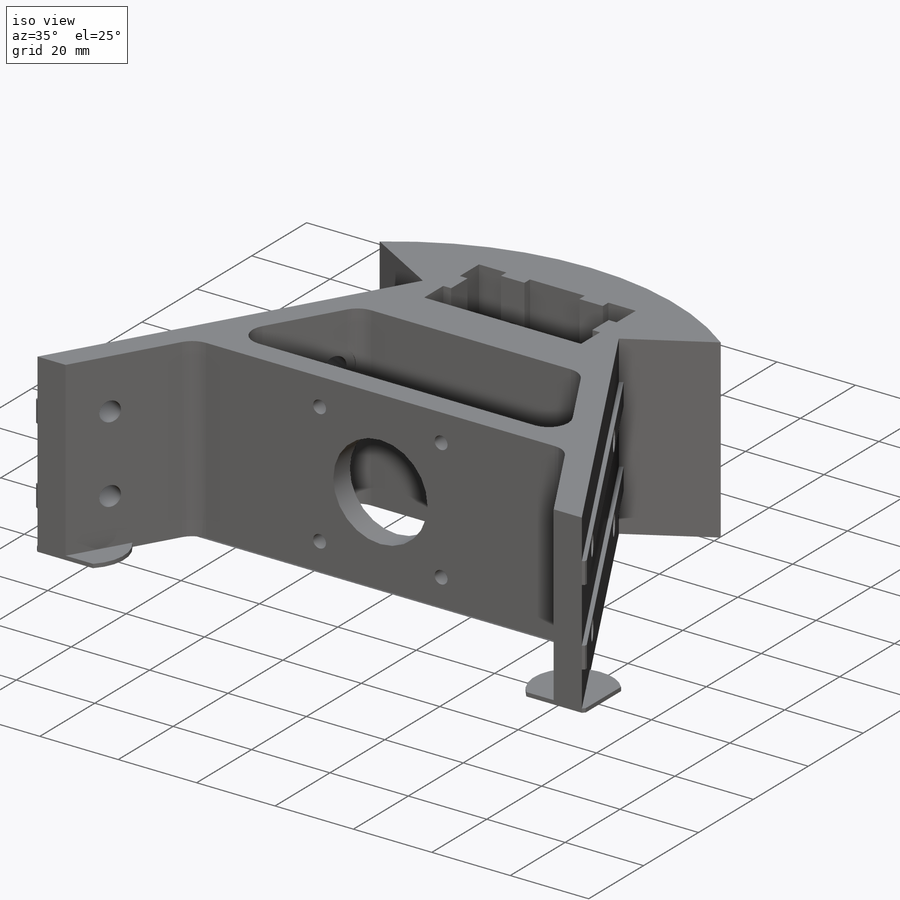
[diagram: iso view]
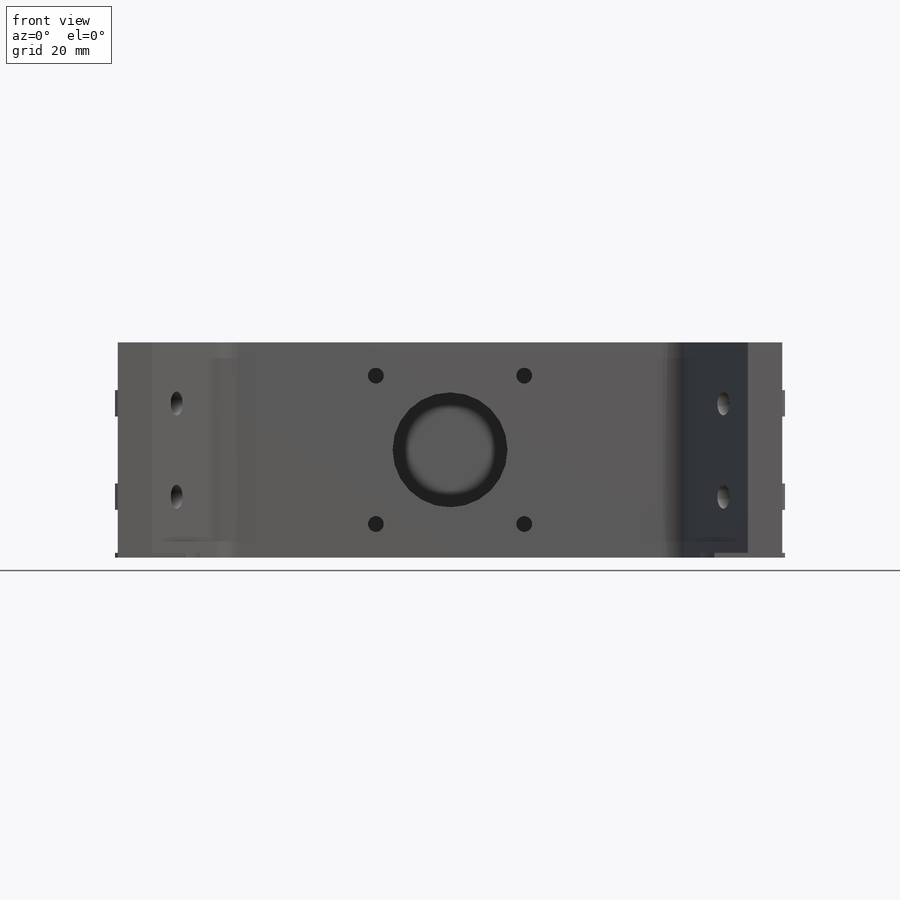
[diagram: front view]
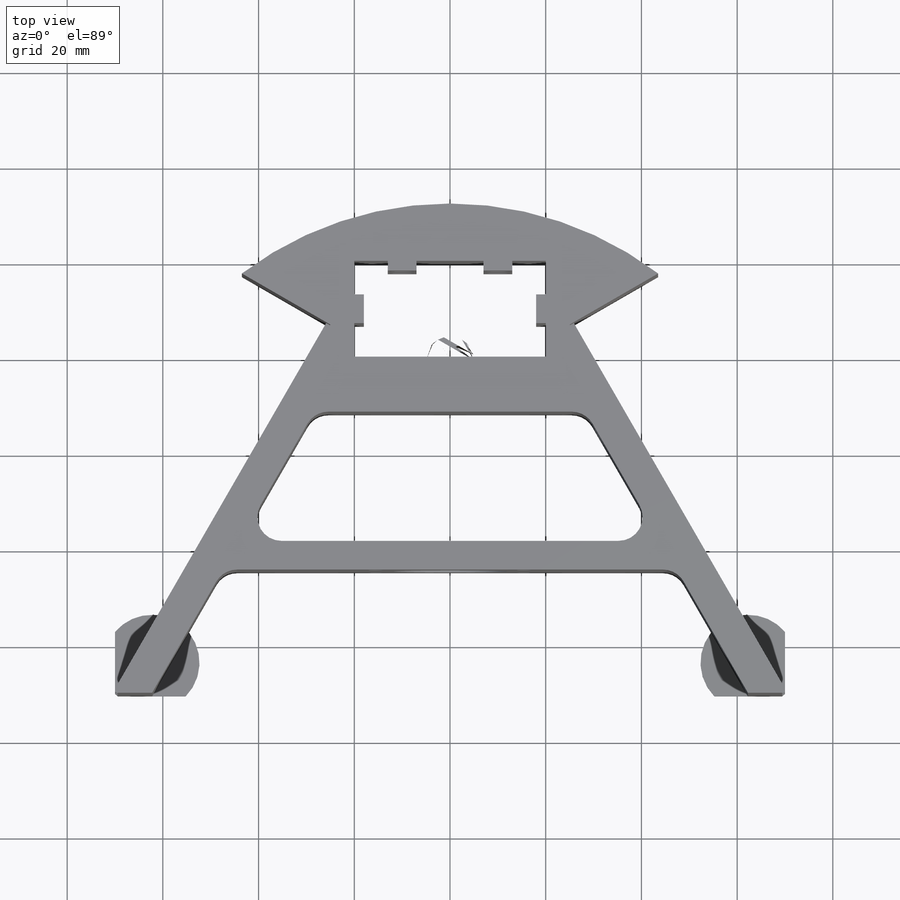
[diagram: top view]
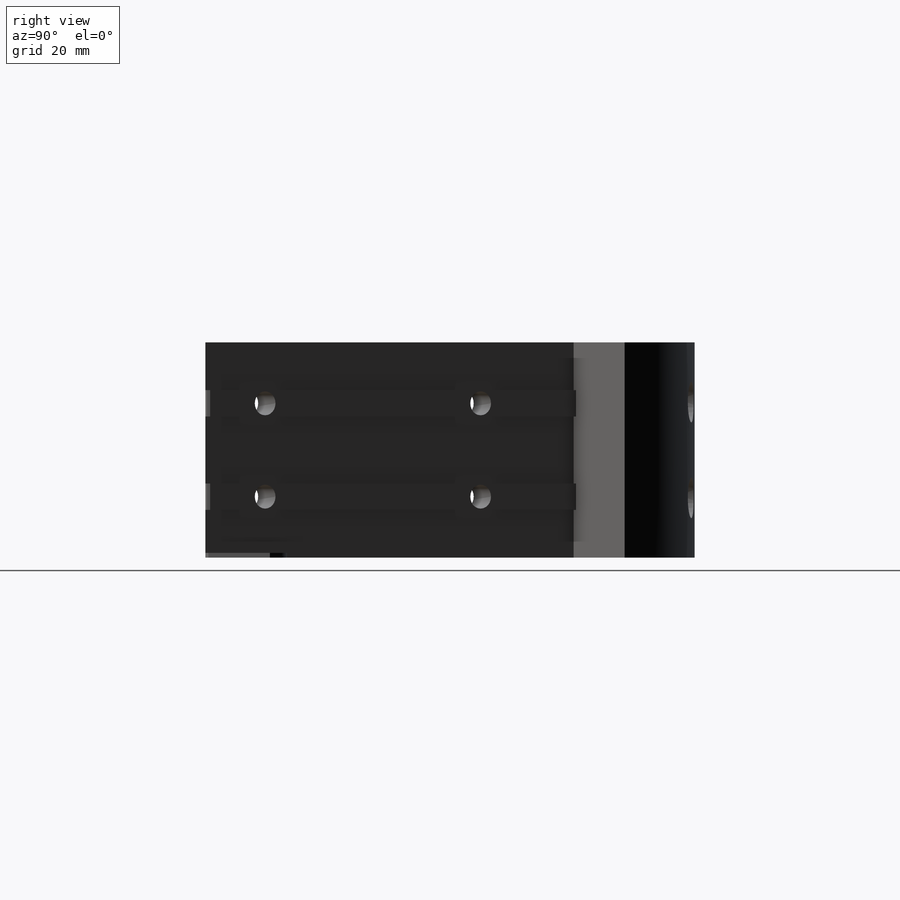
[diagram: right view]
SOLIDWORKS PART (.sldprt)
format: sldprt  version: not decoded by parser v0  size: 586,752 bytes
history: native  units: mm
features: sketch x11, cut_extrude x6, extrude x5, pattern_linear x2, material x1, mirror x1 (+13 scaffold rows collapsed)
feature tree (39):
  scaffold x13  (default folders/planes/origin — collapsed)
  material  "ABS"
  sketch  "Sketch1"  dims[c1.D1=144.0mm c1.D14=10.0mm c1.D2=40.0mm c1.D3=6.0mm c1.D4=2.0mm c1.D5=40.0mm c1.D6=20.0mm c1.D7=5.0mm c2.D2=40.0mm c2.D7=50.0mm c2.D8=50.0mm c3.D8=30.0deg c3.D9=200.0mm c4.D8=50.0mm c5.D8=30.0deg c5.D9=40.0mm c5.D10=200.0mm c5.D11=150.0mm c5.D12=~13.599582mm c6.D12=30.0deg c6.D13=11.5mm c6.D15=17.0mm c6.D16=45.0mm c6.D17=70.5mm c7.D13=1.5mm c7.D18=~12.529593mm c8.D13=1.5mm c8.D16=4.0mm c8.D18=6.0mm c9.D16=~68.844253mm]
  extrude  "Boss-Extrude1"  Depth=45mm
  sketch  "Sketch2"  dims[c1.D1=24.0mm c1.D2=3.3mm c1.D3=3.3mm c1.D4=3.3mm c2.D3=31.0mm c2.D4=31.0mm]
  cut_extrude  "Cut-Extrude1"  [1 undecoded]
  sketch  "Sketch3"  dims[D1=5.5mm D2=7.0mm]
  extrude  "Boss-Extrude2"  Depth=1mm
  sketch  "Sketch4"  dims[c1.D1=5.0mm c1.D3=5.0mm c1.D2=23.0mm c2.D3=75.0mm]
  cut_extrude  "Cut-Extrude2"  [1 undecoded]
  sketch  "Sketch7"  dims[D1=9.0mm]
  cut_extrude  "Cut-Extrude6"  [1 undecoded]
  sketch  "Sketch5"  dims[c1.D1=~5.153715mm c1.D2=5.0mm c2.D1=5.5mm c2.D2=7.0mm c3.D1=20.0mm]
  cut_extrude  "Cut-Extrude3"  [1 undecoded]
  sketch  "Sketch6"  dims[D1=8.5mm]
  cut_extrude  "Cut-Extrude5"  Depth=1.7mm
  mirror  "Mirror1"
  sketch  "Sketch8"  dims[D1=20.0mm D2=13.0mm]
  extrude  "Boss-Extrude3"  Depth=1mm
  sketch  "Sketch10"  dims[c1.D1=2.0mm c2.D1=65.0deg]
  extrude  "Boss-Extrude4"  Depth=0.7mm
  pattern_linear  "LPattern1"  Count1=46 Count2=1 Spacing1=2mm Spacing2=10mm
  sketch  "Sketch11"  dims[c1.D1=~4.557393mm c2.D1=65.0deg]
  extrude  "Boss-Extrude5"  Depth=0.7mm
  pattern_linear  "LPattern2"  Count1=46 Count2=1 Spacing1=2mm Spacing2=10mm
  sketch  "Sketch12"  dims[c1.D1=80.0mm c1.D2=160.0mm c1.D3=4.9mm c1.D4=22.0mm c1.D5=~136.572591mm c2.D5=150.0deg c2.D6=~1.333333mm c3.D6=150.0deg c3.D7=~2.309401mm c4.D7=120.0deg c5.D7=10.0mm c5.D5=2.0mm]
  cut_extrude  "Cut-Extrude7"  [1 undecoded]
decode coverage: 19 of 25 modeling features carry decoded parameters
note: ~ marks probable driven/reference dimensions
note: 5 parameter values undecoded
summary: no parameter record found for 5 features
note: suppression state not decoded; provenance and decode notes live in map.json
